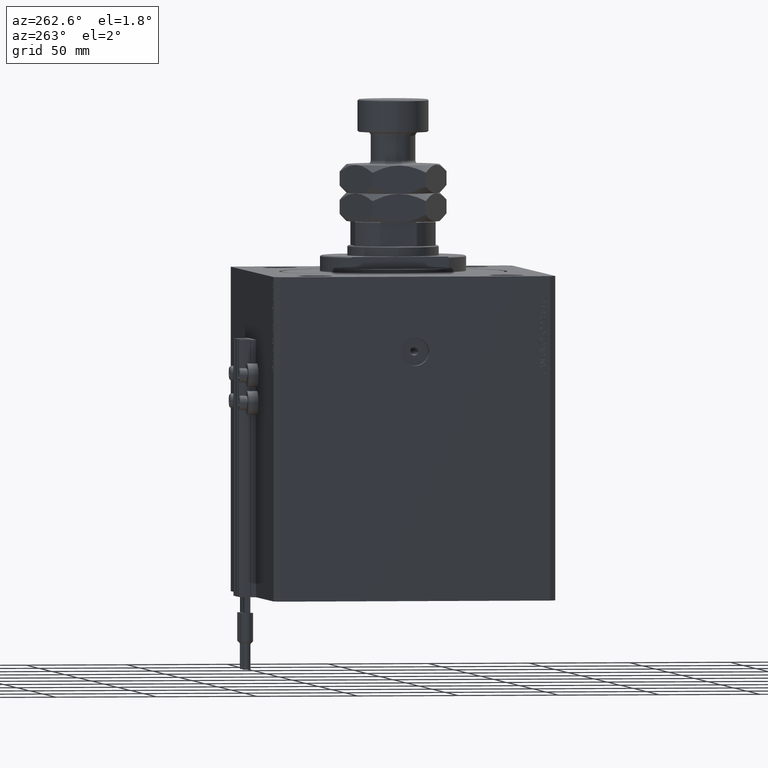
[diagram: clean part render]
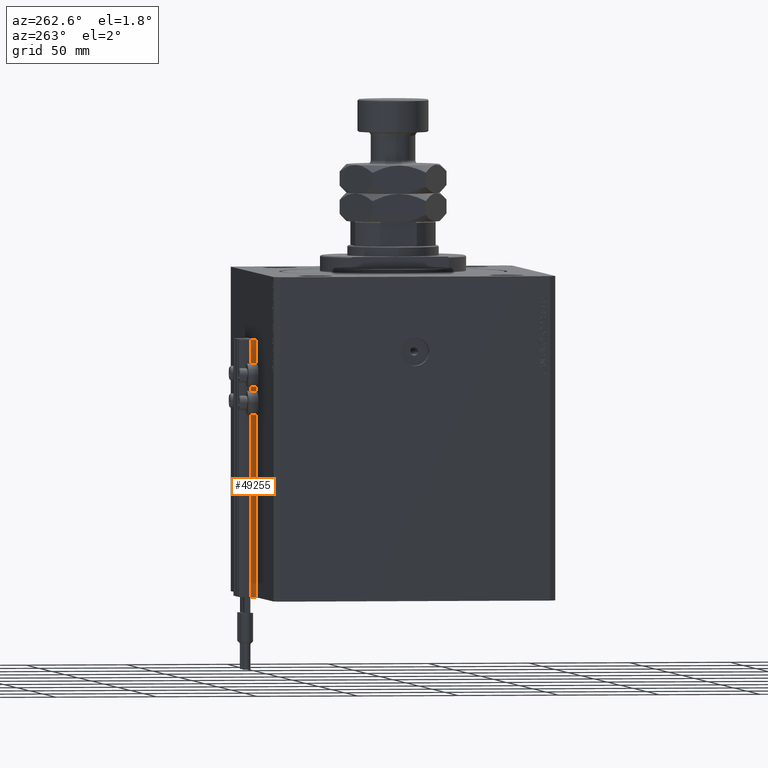
[diagram: same view with one face highlighted and labeled with its STEP entity id]
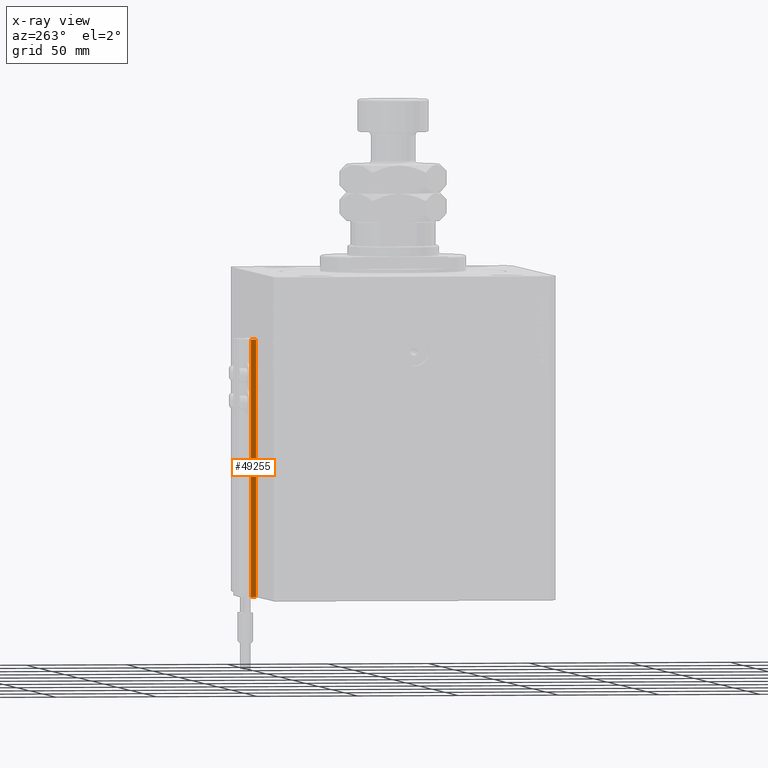
[diagram: x-ray of the same camera — body ghosted, the highlighted face saturated]
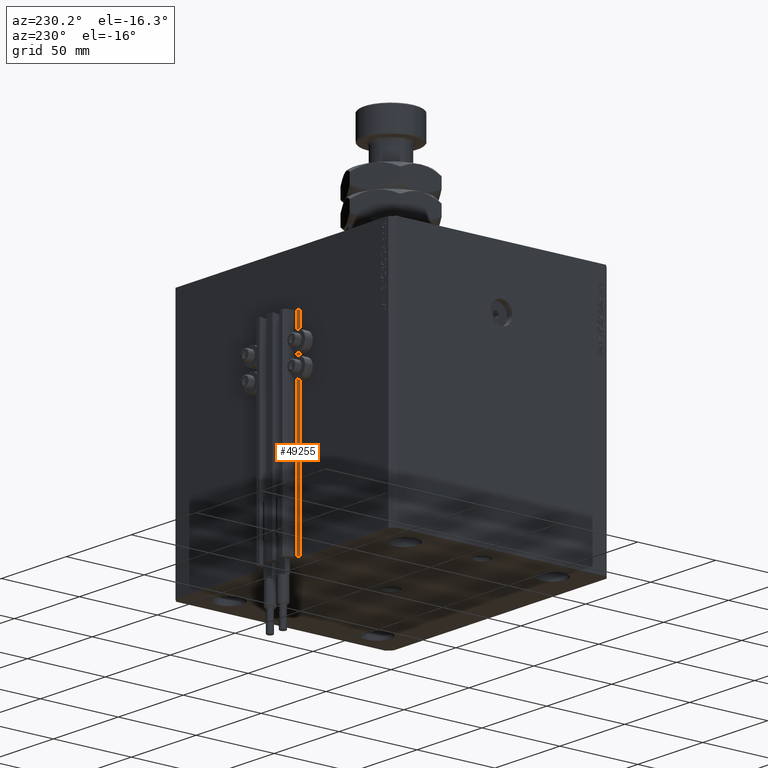
[diagram: same view with one face highlighted and labeled with its STEP entity id]
A machine part, auxiliary view. The second image highlights one B-rep face of the part: STEP entity #49255.
The next image is the same camera in x-ray: the body ghosted, the highlighted face saturated — about 0% of this face is hidden behind the body in this view.
A second angle (auxiliary view) of the same face is appended — the face is thin or edge-on in the first view.
In plain terms, the highlighted planar face has unit normal (-1, 0, 0).
Its self-contained STEP definition (entity closure, byte-faithful):
#592 = VERTEX_POINT ( 'NONE', #661 ) ;
#661 = CARTESIAN_POINT ( 'NONE',  ( -14.50000000000000000, 72.50000000000000000, -160.0000000000000000 ) ) ;
#2317 = CARTESIAN_POINT ( 'NONE',  ( -14.50000000000000000, 72.50000000000000000, -33.00000000000000000 ) ) ;
#3179 = CARTESIAN_POINT ( 'NONE',  ( -14.50000000000000000, 72.50000000000000000, -33.00000000000000000 ) ) ;
#3529 = ORIENTED_EDGE ( 'NONE', *, *, #45079, .F. ) ;
#4584 = EDGE_LOOP ( 'NONE', ( #3529, #22050, #43411, #15458 ) ) ;
#8701 = PLANE ( 'NONE',  #35056 ) ;
#8821 = CARTESIAN_POINT ( 'NONE',  ( -14.50000000000000000, 72.50000000000000000, -160.0000000000000000 ) ) ;
#10829 = VERTEX_POINT ( 'NONE', #16393 ) ;
#12729 = DIRECTION ( 'NONE',  ( 0.000000000000000000, 0.000000000000000000, 1.000000000000000000 ) ) ;
#13165 = DIRECTION ( 'NONE',  ( 0.000000000000000000, -1.000000000000000000, 0.000000000000000000 ) ) ;
#15458 = ORIENTED_EDGE ( 'NONE', *, *, #49324, .T. ) ;
#16393 = CARTESIAN_POINT ( 'NONE',  ( -14.50000000000000000, 70.00000000000000000, -160.0000000000000000 ) ) ;
#16423 = VECTOR ( 'NONE', #13165, 1000.000000000000000 ) ;
#16759 = DIRECTION ( 'NONE',  ( -1.000000000000000000, 0.000000000000000000, 0.000000000000000000 ) ) ;
#21408 = VECTOR ( 'NONE', #28033, 1000.000000000000000 ) ;
#22050 = ORIENTED_EDGE ( 'NONE', *, *, #39260, .F. ) ;
#24509 = LINE ( 'NONE', #31856, #43128 ) ;
#25891 = LINE ( 'NONE', #3179, #36526 ) ;
#28033 = DIRECTION ( 'NONE',  ( 0.000000000000000000, 0.000000000000000000, 1.000000000000000000 ) ) ;
#28218 = CARTESIAN_POINT ( 'NONE',  ( -14.50000000000000000, 70.00000000000000000, -33.00000000000000000 ) ) ;
#31856 = CARTESIAN_POINT ( 'NONE',  ( -14.50000000000000000, 70.00000000000000000, -160.0000000000000000 ) ) ;
#31952 = FACE_OUTER_BOUND ( 'NONE', #4584, .T. ) ;
#35056 = AXIS2_PLACEMENT_3D ( 'NONE', #47343, #16759, #12729 ) ;
#36164 = LINE ( 'NONE', #47782, #16423 ) ;
#36526 = VECTOR ( 'NONE', #41294, 1000.000000000000000 ) ;
#39260 = EDGE_CURVE ( 'NONE', #592, #46465, #43673, .T. ) ;
#41294 = DIRECTION ( 'NONE',  ( 0.000000000000000000, -1.000000000000000000, 0.000000000000000000 ) ) ;
#42958 = DIRECTION ( 'NONE',  ( 0.000000000000000000, 0.000000000000000000, 1.000000000000000000 ) ) ;
#43115 = VERTEX_POINT ( 'NONE', #28218 ) ;
#43128 = VECTOR ( 'NONE', #42958, 1000.000000000000000 ) ;
#43411 = ORIENTED_EDGE ( 'NONE', *, *, #43788, .T. ) ;
#43673 = LINE ( 'NONE', #8821, #21408 ) ;
#43788 = EDGE_CURVE ( 'NONE', #592, #10829, #36164, .T. ) ;
#45079 = EDGE_CURVE ( 'NONE', #46465, #43115, #25891, .T. ) ;
#46465 = VERTEX_POINT ( 'NONE', #2317 ) ;
#47343 = CARTESIAN_POINT ( 'NONE',  ( -14.50000000000000000, 72.50000000000000000, -160.0000000000000000 ) ) ;
#47782 = CARTESIAN_POINT ( 'NONE',  ( -14.50000000000000000, 72.50000000000000000, -160.0000000000000000 ) ) ;
#49255 = ADVANCED_FACE ( 'NONE', ( #31952 ), #8701, .T. ) ;
#49324 = EDGE_CURVE ( 'NONE', #10829, #43115, #24509, .T. ) ;